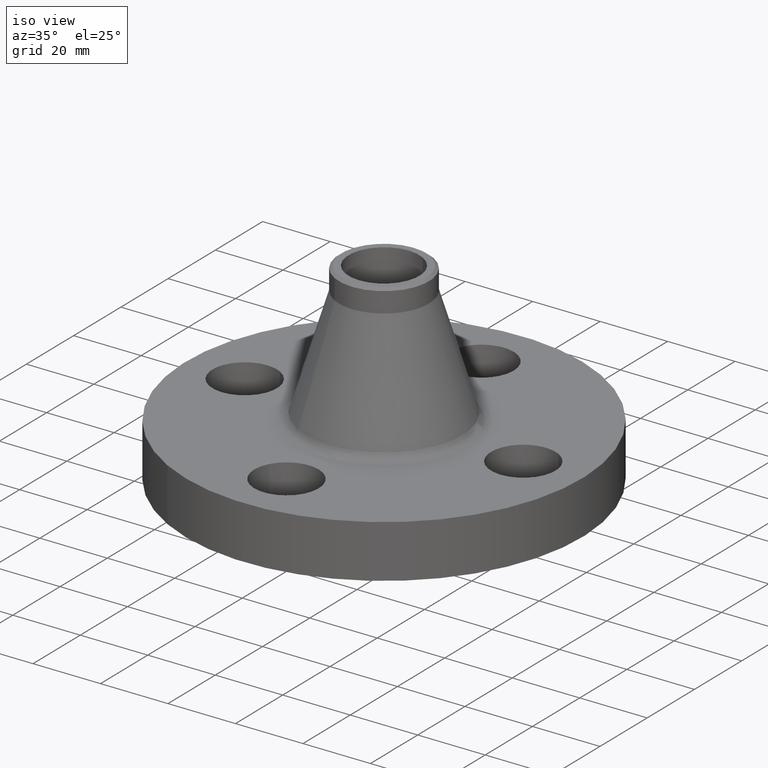
[diagram: clean part render]
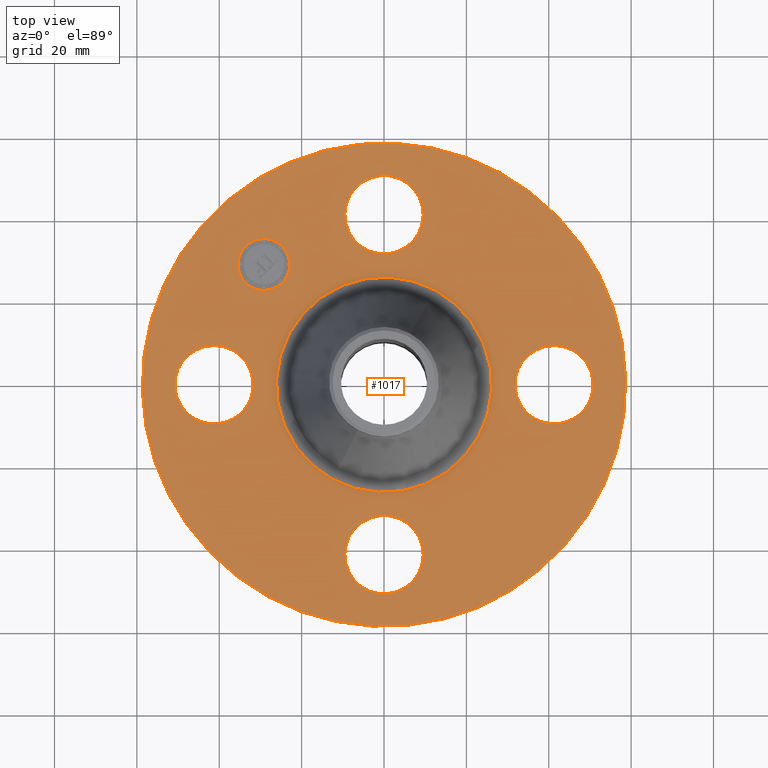
[diagram: tour spotlight — one face highlighted and labeled with its STEP entity id]
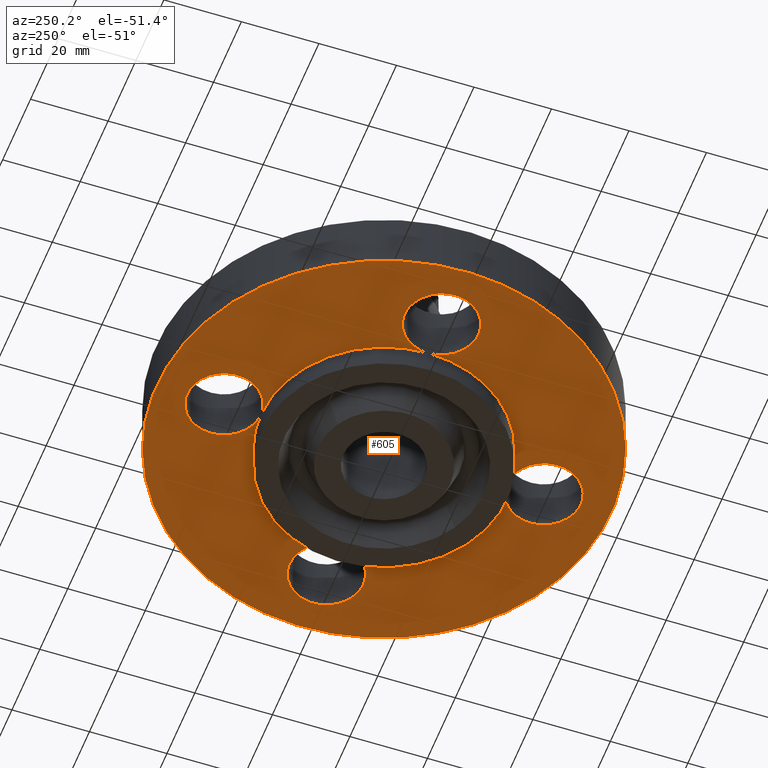
[diagram: tour spotlight — one face highlighted and labeled with its STEP entity id]
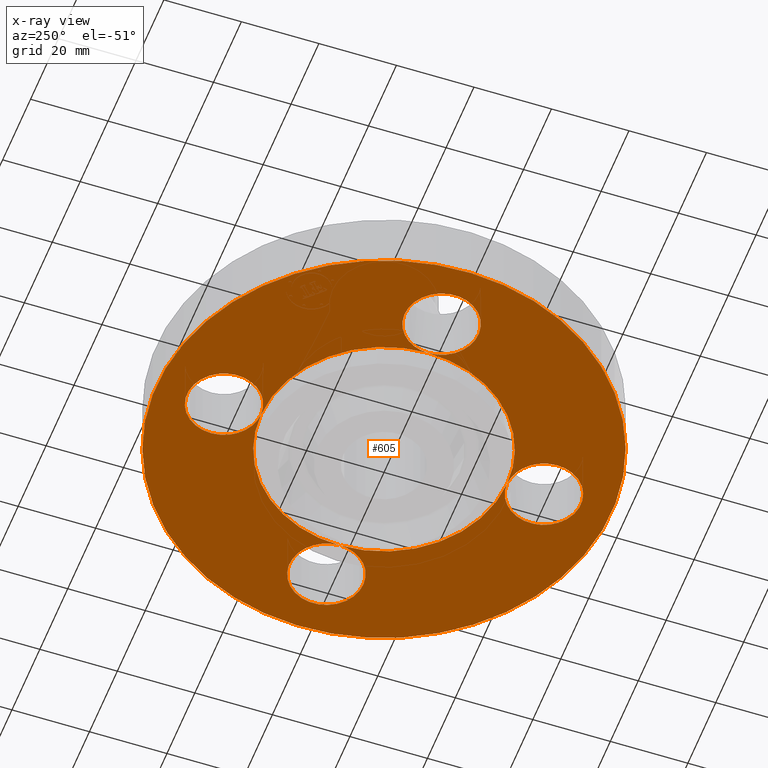
[diagram: x-ray of the same camera — body ghosted, this tour face saturated]
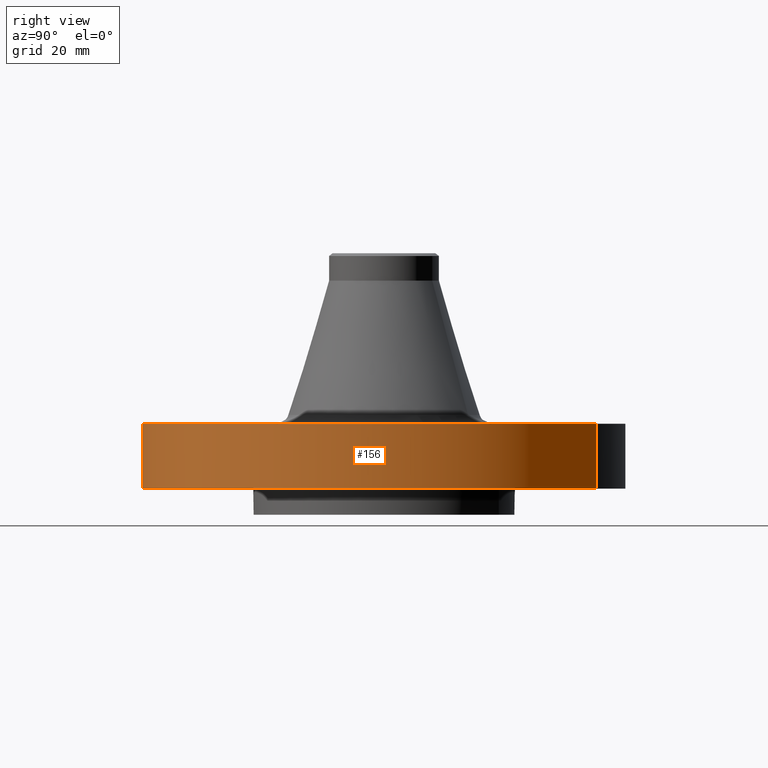
[diagram: tour spotlight — one face highlighted and labeled with its STEP entity id]
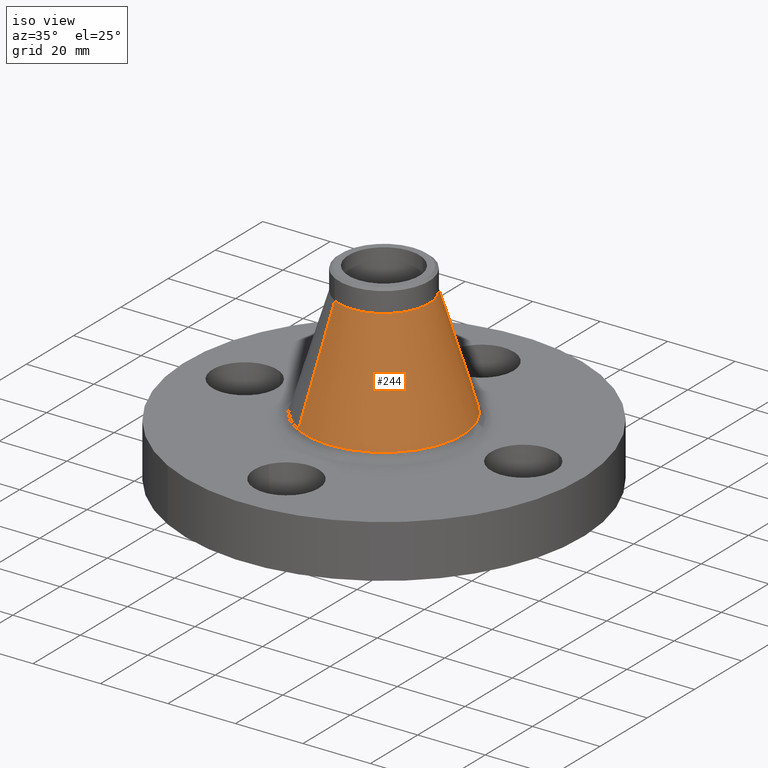
[diagram: tour spotlight — one face highlighted and labeled with its STEP entity id]
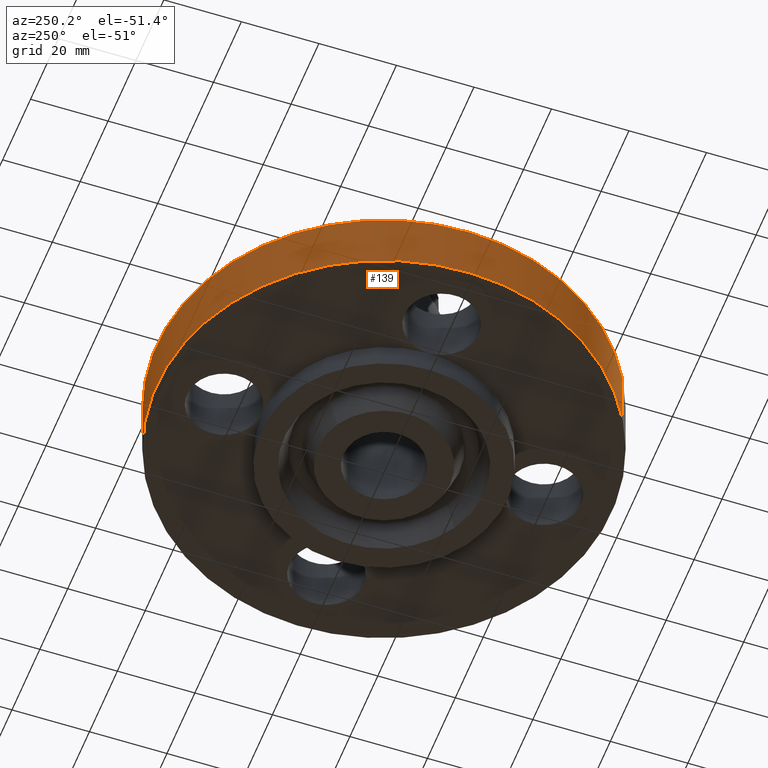
[diagram: tour spotlight — one face highlighted and labeled with its STEP entity id]
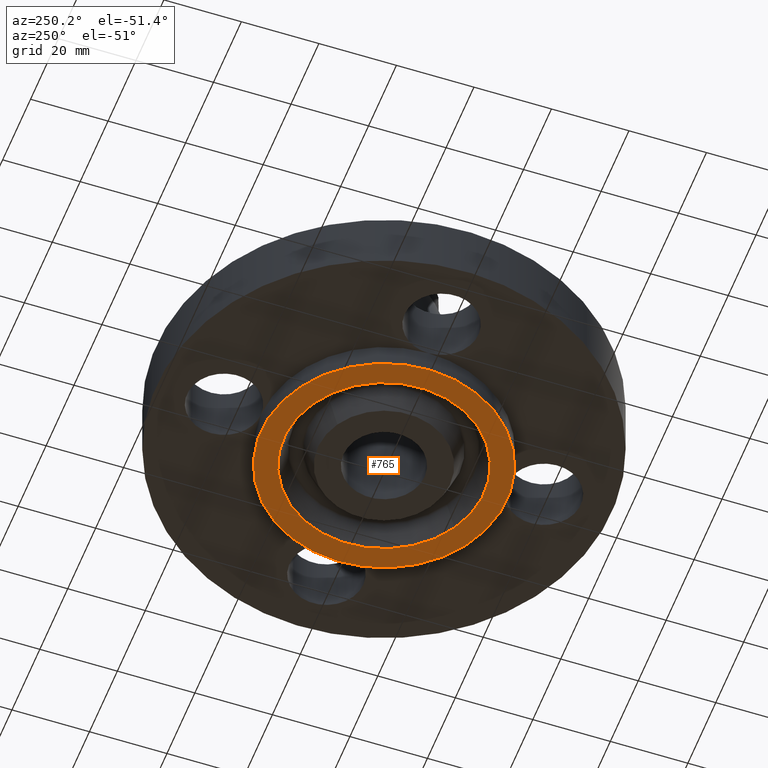
[diagram: tour spotlight — one face highlighted and labeled with its STEP entity id]
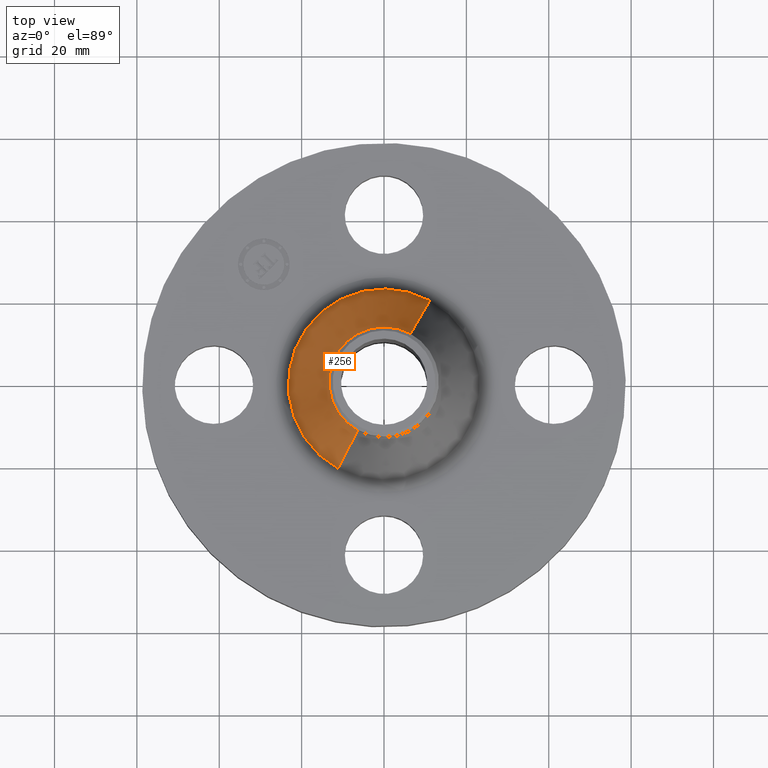
[diagram: tour spotlight — one face highlighted and labeled with its STEP entity id]
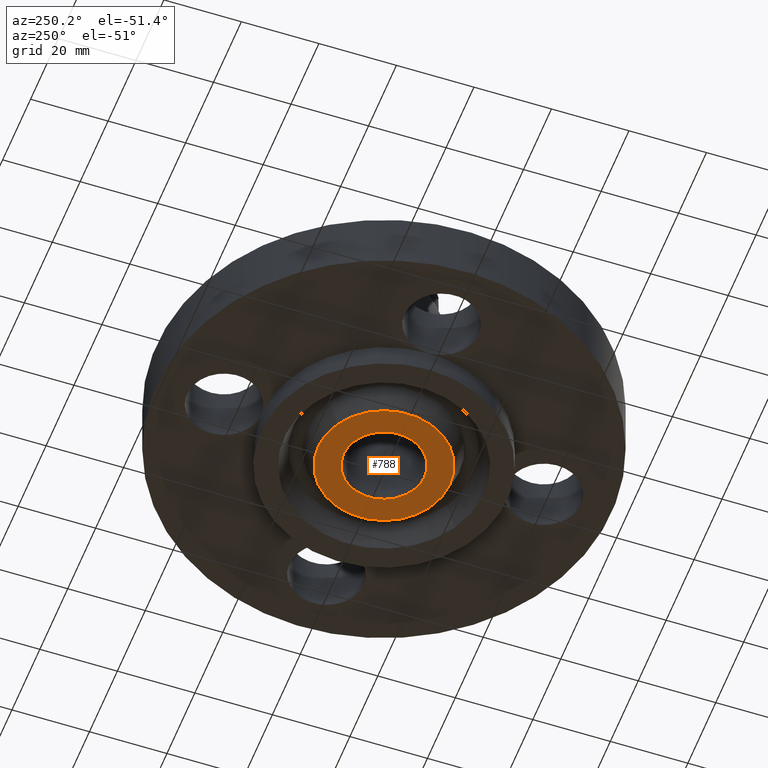
[diagram: tour spotlight — one face highlighted and labeled with its STEP entity id]
A machine part: a face-by-face anatomy tour. The part has 421 B-rep faces; the first image is the clean iso view, then the 8 largest visible faces are spotlighted one at a time (largest first), each with its STEP entity span.

Face 1 — top view, entity #1017. In plain terms, the highlighted planar face has unit normal (0, 0, -1).
Definition (entity closure, byte-faithful):
#65=AXIS2_PLACEMENT_3D('Circle Axis2P3D',#63,#64,$) ;
#89=AXIS2_PLACEMENT_3D('Circle Axis2P3D',#87,#88,$) ;
#123=AXIS2_PLACEMENT_3D('Circle Axis2P3D',#121,#122,$) ;
#147=AXIS2_PLACEMENT_3D('Circle Axis2P3D',#145,#146,$) ;
#164=AXIS2_PLACEMENT_3D('Circle Axis2P3D',#162,#163,$) ;
#199=AXIS2_PLACEMENT_3D('Circle Axis2P3D',#197,#198,$) ;
#627=AXIS2_PLACEMENT_3D('Circle Axis2P3D',#625,#626,$) ;
#639=AXIS2_PLACEMENT_3D('Circle Axis2P3D',#637,#638,$) ;
#671=AXIS2_PLACEMENT_3D('Circle Axis2P3D',#669,#670,$) ;
#683=AXIS2_PLACEMENT_3D('Circle Axis2P3D',#681,#682,$) ;
#715=AXIS2_PLACEMENT_3D('Circle Axis2P3D',#713,#714,$) ;
#727=AXIS2_PLACEMENT_3D('Circle Axis2P3D',#725,#726,$) ;
#973=AXIS2_PLACEMENT_3D('Plane Axis2P3D',#970,#971,#972) ;
#1001=AXIS2_PLACEMENT_3D('Circle Axis2P3D',#999,#1000,$) ;
#1010=AXIS2_PLACEMENT_3D('Circle Axis2P3D',#1008,#1009,$) ;
#46=CARTESIAN_POINT('Vertex',(-0.32909346071,1.80478457698,0.620000000002)) ;
#60=CARTESIAN_POINT('Vertex',(0.32909346071,1.44521542303,0.620000000002)) ;
#63=CARTESIAN_POINT('Axis2P3D Location',(0.,1.62500000001,0.620000000002)) ;
#87=CARTESIAN_POINT('Axis2P3D Location',(0.,1.62500000001,0.620000000002)) ;
#118=CARTESIAN_POINT('Vertex',(-1.10747299418,-2.02721571797,0.620000000002)) ;
#121=CARTESIAN_POINT('Axis2P3D Location',(0.,0.,0.620000000002)) ;
#125=CARTESIAN_POINT('Vertex',(1.10747299418,2.02721571797,0.620000000002)) ;
#145=CARTESIAN_POINT('Axis2P3D Location',(0.,0.,0.620000000002)) ;
#162=CARTESIAN_POINT('Axis2P3D Location',(0.,0.,0.620000000002)) ;
#166=CARTESIAN_POINT('Vertex',(0.49332269324,0.903021132819,0.620000000002)) ;
#168=CARTESIAN_POINT('Vertex',(-0.49332269324,-0.903021132819,0.620000000002)) ;
#197=CARTESIAN_POINT('Axis2P3D Location',(0.,0.,0.620000000002)) ;
#615=CARTESIAN_POINT('Vertex',(1.80478457698,0.32909346071,0.620000000002)) ;
#622=CARTESIAN_POINT('Vertex',(1.44521542303,-0.32909346071,0.620000000002)) ;
#625=CARTESIAN_POINT('Axis2P3D Location',(1.62500000001,-1.8023868212E-016,0.620000000002)) ;
#637=CARTESIAN_POINT('Axis2P3D Location',(1.62500000001,-1.8023868212E-016,0.620000000002)) ;
#659=CARTESIAN_POINT('Vertex',(-1.80478457698,-0.32909346071,0.620000000002)) ;
#666=CARTESIAN_POINT('Vertex',(-1.44521542303,0.32909346071,0.620000000002)) ;
#669=CARTESIAN_POINT('Axis2P3D Location',(-1.62500000001,-2.98507657293E-016,0.620000000002)) ;
#681=CARTESIAN_POINT('Axis2P3D Location',(-1.62500000001,-2.98507657293E-016,0.620000000002)) ;
#703=CARTESIAN_POINT('Vertex',(0.32909346071,-1.80478457698,0.620000000002)) ;
#710=CARTESIAN_POINT('Vertex',(-0.32909346071,-1.44521542303,0.620000000002)) ;
#713=CARTESIAN_POINT('Axis2P3D Location',(1.99005104862E-016,-1.62500000001,0.620000000002)) ;
#725=CARTESIAN_POINT('Axis2P3D Location',(1.99005104862E-016,-1.62500000001,0.620000000002)) ;
#970=CARTESIAN_POINT('Axis2P3D Location',(0.,2.31000000001,0.620000000002)) ;
#999=CARTESIAN_POINT('Axis2P3D Location',(-1.14904851943,1.14904851943,0.620000000002)) ;
#1003=CARTESIAN_POINT('Vertex',(-1.32405744778,0.974039591088,0.620000000002)) ;
#1005=CARTESIAN_POINT('Vertex',(-0.974039591088,1.32405744778,0.620000000002)) ;
#1008=CARTESIAN_POINT('Axis2P3D Location',(-1.14904851943,1.14904851943,0.620000000002)) ;
#64=DIRECTION('Axis2P3D Direction',(0.,-0.,-0.0393700787402)) ;
#88=DIRECTION('Axis2P3D Direction',(0.,-0.,-0.0393700787402)) ;
#122=DIRECTION('Axis2P3D Direction',(0.,0.,-0.0393700787402)) ;
#146=DIRECTION('Axis2P3D Direction',(0.,0.,-0.0393700787402)) ;
#163=DIRECTION('Axis2P3D Direction',(0.,0.,-0.0393700787402)) ;
#198=DIRECTION('Axis2P3D Direction',(0.,0.,-0.0393700787402)) ;
#626=DIRECTION('Axis2P3D Direction',(0.,-0.,-0.0393700787402)) ;
#638=DIRECTION('Axis2P3D Direction',(0.,-0.,-0.0393700787402)) ;
#670=DIRECTION('Axis2P3D Direction',(0.,0.,-0.0393700787402)) ;
#682=DIRECTION('Axis2P3D Direction',(0.,0.,-0.0393700787402)) ;
#714=DIRECTION('Axis2P3D Direction',(-0.,0.,-0.0393700787402)) ;
#726=DIRECTION('Axis2P3D Direction',(-0.,0.,-0.0393700787402)) ;
#971=DIRECTION('Axis2P3D Direction',(0.,0.,-0.0393700787402)) ;
#972=DIRECTION('Axis2P3D XDirection',(0.0393700787402,0.,0.)) ;
#1000=DIRECTION('Axis2P3D Direction',(0.,0.,-0.0393700787402)) ;
#1009=DIRECTION('Axis2P3D Direction',(0.,0.,-0.0393700787402)) ;
#976=ORIENTED_EDGE('',*,*,#149,.F.) ;
#977=ORIENTED_EDGE('',*,*,#127,.F.) ;
#980=ORIENTED_EDGE('',*,*,#67,.T.) ;
#981=ORIENTED_EDGE('',*,*,#91,.T.) ;
#984=ORIENTED_EDGE('',*,*,#201,.T.) ;
#985=ORIENTED_EDGE('',*,*,#170,.T.) ;
#988=ORIENTED_EDGE('',*,*,#641,.T.) ;
#989=ORIENTED_EDGE('',*,*,#629,.T.) ;
#992=ORIENTED_EDGE('',*,*,#729,.T.) ;
#993=ORIENTED_EDGE('',*,*,#717,.T.) ;
#996=ORIENTED_EDGE('',*,*,#685,.T.) ;
#997=ORIENTED_EDGE('',*,*,#673,.T.) ;
#1014=ORIENTED_EDGE('',*,*,#1007,.T.) ;
#1015=ORIENTED_EDGE('',*,*,#1012,.T.) ;
#982=FACE_BOUND('',#979,.T.) ;
#986=FACE_BOUND('',#983,.T.) ;
#990=FACE_BOUND('',#987,.T.) ;
#994=FACE_BOUND('',#991,.T.) ;
#998=FACE_BOUND('',#995,.T.) ;
#1016=FACE_BOUND('',#1013,.T.) ;
#1017=ADVANCED_FACE('PartBody',(#978,#982,#986,#990,#994,#998,#1016),#974,.F.) ;
#66=CIRCLE('generated circle',#65,0.375000000001) ;
#90=CIRCLE('generated circle',#89,0.375000000001) ;
#124=CIRCLE('generated circle',#123,2.31000000001) ;
#148=CIRCLE('generated circle',#147,2.31000000001) ;
#165=CIRCLE('generated circle',#164,1.02898709709) ;
#200=CIRCLE('generated circle',#199,1.02898709709) ;
#628=CIRCLE('generated circle',#627,0.375000000001) ;
#640=CIRCLE('generated circle',#639,0.375000000001) ;
#672=CIRCLE('generated circle',#671,0.375000000001) ;
#684=CIRCLE('generated circle',#683,0.375000000001) ;
#716=CIRCLE('generated circle',#715,0.375000000001) ;
#728=CIRCLE('generated circle',#727,0.375000000001) ;
#1002=CIRCLE('generated circle',#1001,0.247500000001) ;
#1011=CIRCLE('generated circle',#1010,0.247500000001) ;
#67=EDGE_CURVE('',#47,#61,#66,.T.) ;
#91=EDGE_CURVE('',#61,#47,#90,.T.) ;
#127=EDGE_CURVE('',#119,#126,#124,.T.) ;
#149=EDGE_CURVE('',#126,#119,#148,.T.) ;
#170=EDGE_CURVE('',#167,#169,#165,.T.) ;
#201=EDGE_CURVE('',#169,#167,#200,.T.) ;
#629=EDGE_CURVE('',#616,#623,#628,.T.) ;
#641=EDGE_CURVE('',#623,#616,#640,.T.) ;
#673=EDGE_CURVE('',#660,#667,#672,.T.) ;
#685=EDGE_CURVE('',#667,#660,#684,.T.) ;
#717=EDGE_CURVE('',#704,#711,#716,.T.) ;
#729=EDGE_CURVE('',#711,#704,#728,.T.) ;
#1007=EDGE_CURVE('',#1004,#1006,#1002,.T.) ;
#1012=EDGE_CURVE('',#1006,#1004,#1011,.T.) ;
#975=EDGE_LOOP('',(#976,#977)) ;
#979=EDGE_LOOP('',(#980,#981)) ;
#983=EDGE_LOOP('',(#984,#985)) ;
#987=EDGE_LOOP('',(#988,#989)) ;
#991=EDGE_LOOP('',(#992,#993)) ;
#995=EDGE_LOOP('',(#996,#997)) ;
#1013=EDGE_LOOP('',(#1014,#1015)) ;
#978=FACE_OUTER_BOUND('',#975,.T.) ;
#974=PLANE('',#973) ;
#47=VERTEX_POINT('',#46) ;
#61=VERTEX_POINT('',#60) ;
#119=VERTEX_POINT('',#118) ;
#126=VERTEX_POINT('',#125) ;
#167=VERTEX_POINT('',#166) ;
#169=VERTEX_POINT('',#168) ;
#616=VERTEX_POINT('',#615) ;
#623=VERTEX_POINT('',#622) ;
#660=VERTEX_POINT('',#659) ;
#667=VERTEX_POINT('',#666) ;
#704=VERTEX_POINT('',#703) ;
#711=VERTEX_POINT('',#710) ;
#1004=VERTEX_POINT('',#1003) ;
#1006=VERTEX_POINT('',#1005) ;

Face 2 — auxiliary view, entity #605. An x-ray twin of the same camera follows (body ghosted, this face saturated) — the face is partly hidden behind the body. In plain terms, the highlighted planar face has unit normal (0, 0, -1).
Definition (entity closure, byte-faithful):
#51=AXIS2_PLACEMENT_3D('Circle Axis2P3D',#49,#50,$) ;
#77=AXIS2_PLACEMENT_3D('Circle Axis2P3D',#75,#76,$) ;
#84=AXIS2_PLACEMENT_3D('Circle Axis2P3D',#82,#83,$) ;
#107=AXIS2_PLACEMENT_3D('Circle Axis2P3D',#105,#106,$) ;
#142=AXIS2_PLACEMENT_3D('Circle Axis2P3D',#140,#141,$) ;
#455=AXIS2_PLACEMENT_3D('Circle Axis2P3D',#453,#454,$) ;
#462=AXIS2_PLACEMENT_3D('Circle Axis2P3D',#460,#461,$) ;
#467=AXIS2_PLACEMENT_3D('Circle Axis2P3D',#465,#466,$) ;
#493=AXIS2_PLACEMENT_3D('Circle Axis2P3D',#491,#492,$) ;
#500=AXIS2_PLACEMENT_3D('Circle Axis2P3D',#498,#499,$) ;
#507=AXIS2_PLACEMENT_3D('Circle Axis2P3D',#505,#506,$) ;
#522=AXIS2_PLACEMENT_3D('Plane Axis2P3D',#519,#520,#521) ;
#530=AXIS2_PLACEMENT_3D('Circle Axis2P3D',#528,#529,$) ;
#537=AXIS2_PLACEMENT_3D('Circle Axis2P3D',#535,#536,$) ;
#544=AXIS2_PLACEMENT_3D('Circle Axis2P3D',#542,#543,$) ;
#549=AXIS2_PLACEMENT_3D('Circle Axis2P3D',#547,#548,$) ;
#556=AXIS2_PLACEMENT_3D('Circle Axis2P3D',#554,#555,$) ;
#563=AXIS2_PLACEMENT_3D('Circle Axis2P3D',#561,#562,$) ;
#568=AXIS2_PLACEMENT_3D('Circle Axis2P3D',#566,#567,$) ;
#575=AXIS2_PLACEMENT_3D('Circle Axis2P3D',#573,#574,$) ;
#582=AXIS2_PLACEMENT_3D('Circle Axis2P3D',#580,#581,$) ;
#44=CARTESIAN_POINT('Vertex',(-0.32909346071,1.80478457698,0.)) ;
#49=CARTESIAN_POINT('Axis2P3D Location',(0.,1.62500000001,0.)) ;
#53=CARTESIAN_POINT('Vertex',(0.32909346071,1.44521542303,0.)) ;
#75=CARTESIAN_POINT('Axis2P3D Location',(0.,1.62500000001,0.)) ;
#79=CARTESIAN_POINT('Vertex',(3.90510912389E-015,1.25000000001,1.39870617276E-016)) ;
#82=CARTESIAN_POINT('Axis2P3D Location',(0.,1.62500000001,0.)) ;
#105=CARTESIAN_POINT('Axis2P3D Location',(0.,0.,1.39870617276E-016)) ;
#109=CARTESIAN_POINT('Vertex',(-1.10747299418,-2.02721571797,2.79741234551E-016)) ;
#111=CARTESIAN_POINT('Vertex',(1.10747299418,2.02721571797,2.79741234551E-016)) ;
#140=CARTESIAN_POINT('Axis2P3D Location',(0.,0.,1.39870617276E-016)) ;
#450=CARTESIAN_POINT('Vertex',(-0.599281923258,-1.09697820237,1.39870617276E-016)) ;
#453=CARTESIAN_POINT('Axis2P3D Location',(0.,0.,1.39870617276E-016)) ;
#457=CARTESIAN_POINT('Vertex',(-1.25000000001,-1.39870617276E-016,0.)) ;
#460=CARTESIAN_POINT('Axis2P3D Location',(0.,0.,1.39870617276E-016)) ;
#465=CARTESIAN_POINT('Axis2P3D Location',(0.,0.,1.39870617276E-016)) ;
#469=CARTESIAN_POINT('Vertex',(0.599281923258,1.09697820237,1.39870617276E-016)) ;
#491=CARTESIAN_POINT('Axis2P3D Location',(0.,0.,1.39870617276E-016)) ;
#495=CARTESIAN_POINT('Vertex',(1.25000000001,-1.39870617276E-016,0.)) ;
#498=CARTESIAN_POINT('Axis2P3D Location',(0.,0.,1.39870617276E-016)) ;
#502=CARTESIAN_POINT('Vertex',(2.02112938519E-016,-1.25000000001,0.)) ;
#505=CARTESIAN_POINT('Axis2P3D Location',(0.,0.,1.39870617276E-016)) ;
#519=CARTESIAN_POINT('Axis2P3D Location',(0.,1.25000000001,0.)) ;
#528=CARTESIAN_POINT('Axis2P3D Location',(2.70999320971E-016,-1.62500000001,0.)) ;
#532=CARTESIAN_POINT('Vertex',(-0.32909346071,-1.44521542303,0.)) ;
#535=CARTESIAN_POINT('Axis2P3D Location',(1.39870617276E-016,-1.62500000001,0.)) ;
#539=CARTESIAN_POINT('Vertex',(0.32909346071,-1.80478457698,0.)) ;
#542=CARTESIAN_POINT('Axis2P3D Location',(2.70999320971E-016,-1.62500000001,0.)) ;
#547=CARTESIAN_POINT('Axis2P3D Location',(1.62500000001,-1.39870617276E-016,0.)) ;
#551=CARTESIAN_POINT('Vertex',(1.44521542303,-0.32909346071,0.)) ;
#554=CARTESIAN_POINT('Axis2P3D Location',(1.62500000001,-1.39870617276E-016,0.)) ;
#558=CARTESIAN_POINT('Vertex',(1.80478457698,0.32909346071,0.)) ;
#561=CARTESIAN_POINT('Axis2P3D Location',(1.62500000001,-1.39870617276E-016,0.)) ;
#566=CARTESIAN_POINT('Axis2P3D Location',(-1.62500000001,-2.79741234551E-016,0.)) ;
#570=CARTESIAN_POINT('Vertex',(-1.44521542303,0.32909346071,0.)) ;
#573=CARTESIAN_POINT('Axis2P3D Location',(-1.62500000001,-2.79741234551E-016,0.)) ;
#577=CARTESIAN_POINT('Vertex',(-1.80478457698,-0.32909346071,0.)) ;
#580=CARTESIAN_POINT('Axis2P3D Location',(-1.62500000001,-2.79741234551E-016,0.)) ;
#50=DIRECTION('Axis2P3D Direction',(0.,-0.,-0.0393700787402)) ;
#76=DIRECTION('Axis2P3D Direction',(0.,-0.,-0.0393700787402)) ;
#83=DIRECTION('Axis2P3D Direction',(0.,-0.,-0.0393700787402)) ;
#106=DIRECTION('Axis2P3D Direction',(0.,0.,-0.0393700787402)) ;
#141=DIRECTION('Axis2P3D Direction',(0.,0.,-0.0393700787402)) ;
#454=DIRECTION('Axis2P3D Direction',(0.,0.,-0.0393700787402)) ;
#461=DIRECTION('Axis2P3D Direction',(0.,0.,-0.0393700787402)) ;
#466=DIRECTION('Axis2P3D Direction',(0.,0.,-0.0393700787402)) ;
#492=DIRECTION('Axis2P3D Direction',(0.,0.,-0.0393700787402)) ;
#499=DIRECTION('Axis2P3D Direction',(0.,0.,-0.0393700787402)) ;
#506=DIRECTION('Axis2P3D Direction',(0.,0.,-0.0393700787402)) ;
#520=DIRECTION('Axis2P3D Direction',(0.,0.,-0.0393700787402)) ;
#521=DIRECTION('Axis2P3D XDirection',(0.0393700787402,0.,0.)) ;
#529=DIRECTION('Axis2P3D Direction',(0.,0.,-0.0393700787402)) ;
#536=DIRECTION('Axis2P3D Direction',(0.,0.,-0.0393700787402)) ;
#543=DIRECTION('Axis2P3D Direction',(0.,0.,-0.0393700787402)) ;
#548=DIRECTION('Axis2P3D Direction',(0.,0.,-0.0393700787402)) ;
#555=DIRECTION('Axis2P3D Direction',(0.,0.,-0.0393700787402)) ;
#562=DIRECTION('Axis2P3D Direction',(0.,0.,-0.0393700787402)) ;
#567=DIRECTION('Axis2P3D Direction',(0.,0.,-0.0393700787402)) ;
#574=DIRECTION('Axis2P3D Direction',(0.,0.,-0.0393700787402)) ;
#581=DIRECTION('Axis2P3D Direction',(0.,0.,-0.0393700787402)) ;
#525=ORIENTED_EDGE('',*,*,#113,.T.) ;
#526=ORIENTED_EDGE('',*,*,#144,.T.) ;
#586=ORIENTED_EDGE('',*,*,#534,.F.) ;
#587=ORIENTED_EDGE('',*,*,#541,.F.) ;
#588=ORIENTED_EDGE('',*,*,#546,.F.) ;
#589=ORIENTED_EDGE('',*,*,#504,.F.) ;
#590=ORIENTED_EDGE('',*,*,#553,.F.) ;
#591=ORIENTED_EDGE('',*,*,#560,.F.) ;
#592=ORIENTED_EDGE('',*,*,#565,.F.) ;
#593=ORIENTED_EDGE('',*,*,#497,.F.) ;
#594=ORIENTED_EDGE('',*,*,#471,.F.) ;
#595=ORIENTED_EDGE('',*,*,#81,.F.) ;
#596=ORIENTED_EDGE('',*,*,#55,.F.) ;
#597=ORIENTED_EDGE('',*,*,#86,.F.) ;
#598=ORIENTED_EDGE('',*,*,#464,.F.) ;
#599=ORIENTED_EDGE('',*,*,#572,.F.) ;
#600=ORIENTED_EDGE('',*,*,#579,.F.) ;
#601=ORIENTED_EDGE('',*,*,#584,.F.) ;
#602=ORIENTED_EDGE('',*,*,#459,.F.) ;
#603=ORIENTED_EDGE('',*,*,#509,.F.) ;
#604=FACE_BOUND('',#585,.T.) ;
#605=ADVANCED_FACE('PartBody',(#527,#604),#523,.T.) ;
#52=CIRCLE('generated circle',#51,0.375000000001) ;
#78=CIRCLE('generated circle',#77,0.375000000001) ;
#85=CIRCLE('generated circle',#84,0.375000000001) ;
#108=CIRCLE('generated circle',#107,2.31000000001) ;
#143=CIRCLE('generated circle',#142,2.31000000001) ;
#456=CIRCLE('generated circle',#455,1.25000000001) ;
#463=CIRCLE('generated circle',#462,1.25000000001) ;
#468=CIRCLE('generated circle',#467,1.25000000001) ;
#494=CIRCLE('generated circle',#493,1.25000000001) ;
#501=CIRCLE('generated circle',#500,1.25000000001) ;
#508=CIRCLE('generated circle',#507,1.25000000001) ;
#531=CIRCLE('generated circle',#530,0.375000000001) ;
#538=CIRCLE('generated circle',#537,0.375000000001) ;
#545=CIRCLE('generated circle',#544,0.375000000001) ;
#550=CIRCLE('generated circle',#549,0.375000000001) ;
#557=CIRCLE('generated circle',#556,0.375000000001) ;
#564=CIRCLE('generated circle',#563,0.375000000001) ;
#569=CIRCLE('generated circle',#568,0.375000000001) ;
#576=CIRCLE('generated circle',#575,0.375000000001) ;
#583=CIRCLE('generated circle',#582,0.375000000001) ;
#55=EDGE_CURVE('',#45,#54,#52,.T.) ;
#81=EDGE_CURVE('',#54,#80,#78,.T.) ;
#86=EDGE_CURVE('',#80,#45,#85,.T.) ;
#113=EDGE_CURVE('',#110,#112,#108,.T.) ;
#144=EDGE_CURVE('',#112,#110,#143,.T.) ;
#459=EDGE_CURVE('',#451,#458,#456,.T.) ;
#464=EDGE_CURVE('',#458,#80,#463,.T.) ;
#471=EDGE_CURVE('',#80,#470,#468,.T.) ;
#497=EDGE_CURVE('',#470,#496,#494,.T.) ;
#504=EDGE_CURVE('',#496,#503,#501,.T.) ;
#509=EDGE_CURVE('',#503,#451,#508,.T.) ;
#534=EDGE_CURVE('',#533,#503,#531,.T.) ;
#541=EDGE_CURVE('',#540,#533,#538,.T.) ;
#546=EDGE_CURVE('',#503,#540,#545,.T.) ;
#553=EDGE_CURVE('',#552,#496,#550,.T.) ;
#560=EDGE_CURVE('',#559,#552,#557,.T.) ;
#565=EDGE_CURVE('',#496,#559,#564,.T.) ;
#572=EDGE_CURVE('',#571,#458,#569,.T.) ;
#579=EDGE_CURVE('',#578,#571,#576,.T.) ;
#584=EDGE_CURVE('',#458,#578,#583,.T.) ;
#524=EDGE_LOOP('',(#525,#526)) ;
#585=EDGE_LOOP('',(#586,#587,#588,#589,#590,#591,#592,#593,#594,#595,#596,#597,#598,#599,#600,#601,#602,#603)) ;
#527=FACE_OUTER_BOUND('',#524,.T.) ;
#523=PLANE('',#522) ;
#45=VERTEX_POINT('',#44) ;
#54=VERTEX_POINT('',#53) ;
#80=VERTEX_POINT('',#79) ;
#110=VERTEX_POINT('',#109) ;
#112=VERTEX_POINT('',#111) ;
#451=VERTEX_POINT('',#450) ;
#458=VERTEX_POINT('',#457) ;
#470=VERTEX_POINT('',#469) ;
#496=VERTEX_POINT('',#495) ;
#503=VERTEX_POINT('',#502) ;
#533=VERTEX_POINT('',#532) ;
#540=VERTEX_POINT('',#539) ;
#552=VERTEX_POINT('',#551) ;
#559=VERTEX_POINT('',#558) ;
#571=VERTEX_POINT('',#570) ;
#578=VERTEX_POINT('',#577) ;

Face 3 — right view, entity #156. In plain terms, the highlighted cylindrical surface (partial cylindrical patch) has radius 58.674 mm, axis along (0, 0, -1).
Definition (entity closure, byte-faithful):
#103=AXIS2_PLACEMENT_3D('Cylinder Axis2P3D',#100,#101,#102) ;
#142=AXIS2_PLACEMENT_3D('Circle Axis2P3D',#140,#141,$) ;
#147=AXIS2_PLACEMENT_3D('Circle Axis2P3D',#145,#146,$) ;
#100=CARTESIAN_POINT('Axis2P3D Location',(0.,0.,1.)) ;
#109=CARTESIAN_POINT('Vertex',(-1.10747299418,-2.02721571797,2.79741234551E-016)) ;
#111=CARTESIAN_POINT('Vertex',(1.10747299418,2.02721571797,2.79741234551E-016)) ;
#114=CARTESIAN_POINT('Line Origine',(-1.10747299418,-2.02721571797,0.310000000001)) ;
#118=CARTESIAN_POINT('Vertex',(-1.10747299418,-2.02721571797,0.620000000002)) ;
#125=CARTESIAN_POINT('Vertex',(1.10747299418,2.02721571797,0.620000000002)) ;
#128=CARTESIAN_POINT('Line Origine',(1.10747299418,2.02721571797,0.310000000001)) ;
#140=CARTESIAN_POINT('Axis2P3D Location',(0.,0.,1.39870617276E-016)) ;
#145=CARTESIAN_POINT('Axis2P3D Location',(0.,0.,0.620000000002)) ;
#101=DIRECTION('Axis2P3D Direction',(0.,0.,-0.0393700787402)) ;
#102=DIRECTION('Axis2P3D XDirection',(0.0188750212049,0.0345504945626,0.)) ;
#115=DIRECTION('Vector Direction',(0.,0.,-0.0393700787402)) ;
#129=DIRECTION('Vector Direction',(0.,0.,-0.0393700787402)) ;
#141=DIRECTION('Axis2P3D Direction',(0.,0.,-0.0393700787402)) ;
#146=DIRECTION('Axis2P3D Direction',(0.,0.,-0.0393700787402)) ;
#116=VECTOR('Line Direction',#115,0.0393700787402) ;
#130=VECTOR('Line Direction',#129,0.0393700787402) ;
#151=ORIENTED_EDGE('',*,*,#144,.F.) ;
#152=ORIENTED_EDGE('',*,*,#132,.T.) ;
#153=ORIENTED_EDGE('',*,*,#149,.T.) ;
#154=ORIENTED_EDGE('',*,*,#120,.F.) ;
#156=ADVANCED_FACE('PartBody',(#155),#104,.T.) ;
#143=CIRCLE('generated circle',#142,2.31000000001) ;
#148=CIRCLE('generated circle',#147,2.31000000001) ;
#104=CYLINDRICAL_SURFACE('generated cylinder',#103,2.31000000001) ;
#120=EDGE_CURVE('',#110,#119,#117,.F.) ;
#132=EDGE_CURVE('',#112,#126,#131,.F.) ;
#144=EDGE_CURVE('',#112,#110,#143,.T.) ;
#149=EDGE_CURVE('',#126,#119,#148,.T.) ;
#150=EDGE_LOOP('',(#151,#152,#153,#154)) ;
#155=FACE_OUTER_BOUND('',#150,.T.) ;
#117=LINE('Line',#114,#116) ;
#131=LINE('Line',#128,#130) ;
#110=VERTEX_POINT('',#109) ;
#112=VERTEX_POINT('',#111) ;
#119=VERTEX_POINT('',#118) ;
#126=VERTEX_POINT('',#125) ;

Face 4 — iso view, entity #244. In plain terms, the highlighted conical surface has half-angle 16.882 deg.
Definition (entity closure, byte-faithful):
#180=AXIS2_PLACEMENT_3D('Circle Axis2P3D',#178,#179,$) ;
#217=AXIS2_PLACEMENT_3D('Cone Axis2P3D',#214,#215,#216) ;
#228=AXIS2_PLACEMENT_3D('Circle Axis2P3D',#226,#227,$) ;
#175=CARTESIAN_POINT('Vertex',(0.438270866998,0.802249440825,0.70515229534)) ;
#178=CARTESIAN_POINT('Axis2P3D Location',(0.,0.,0.70515229534)) ;
#182=CARTESIAN_POINT('Vertex',(-0.438270866998,-0.802249440825,0.70515229534)) ;
#214=CARTESIAN_POINT('Axis2P3D Location',(0.,0.,1.9874910258)) ;
#219=CARTESIAN_POINT('Line Origine',(0.344984637383,0.63149014291,1.34632166057)) ;
#223=CARTESIAN_POINT('Vertex',(0.251698407768,0.460730844994,1.9874910258)) ;
#226=CARTESIAN_POINT('Axis2P3D Location',(0.,0.,1.9874910258)) ;
#230=CARTESIAN_POINT('Vertex',(-0.251698407768,-0.460730844994,1.9874910258)) ;
#233=CARTESIAN_POINT('Line Origine',(-0.344984637383,-0.63149014291,1.34632166057)) ;
#179=DIRECTION('Axis2P3D Direction',(0.,0.,-0.0393700787402)) ;
#215=DIRECTION('Axis2P3D Direction',(0.,0.,-0.0393700787402)) ;
#216=DIRECTION('Axis2P3D XDirection',(-0.0188750212049,-0.0345504945626,0.)) ;
#220=DIRECTION('Vector Direction',(0.0054812597037,0.0100333785871,-0.0376734681997)) ;
#227=DIRECTION('Axis2P3D Direction',(0.,0.,-0.0393700787402)) ;
#234=DIRECTION('Vector Direction',(-0.0054812597037,-0.0100333785871,-0.0376734681997)) ;
#221=VECTOR('Line Direction',#220,0.0393700787402) ;
#235=VECTOR('Line Direction',#234,0.0393700787402) ;
#239=ORIENTED_EDGE('',*,*,#184,.F.) ;
#240=ORIENTED_EDGE('',*,*,#225,.T.) ;
#241=ORIENTED_EDGE('',*,*,#232,.T.) ;
#242=ORIENTED_EDGE('',*,*,#237,.F.) ;
#244=ADVANCED_FACE('PartBody',(#243),#218,.T.) ;
#181=CIRCLE('generated circle',#180,0.914158366019) ;
#229=CIRCLE('generated circle',#228,0.525000000002) ;
#218=CONICAL_SURFACE('Cone',#217,0.525000000002,0.294642253442) ;
#184=EDGE_CURVE('',#176,#183,#181,.T.) ;
#225=EDGE_CURVE('',#176,#224,#222,.F.) ;
#232=EDGE_CURVE('',#224,#231,#229,.T.) ;
#237=EDGE_CURVE('',#183,#231,#236,.F.) ;
#238=EDGE_LOOP('',(#239,#240,#241,#242)) ;
#243=FACE_OUTER_BOUND('',#238,.T.) ;
#222=LINE('Line',#219,#221) ;
#236=LINE('Line',#233,#235) ;
#176=VERTEX_POINT('',#175) ;
#183=VERTEX_POINT('',#182) ;
#224=VERTEX_POINT('',#223) ;
#231=VERTEX_POINT('',#230) ;

Face 5 — auxiliary view, entity #139. In plain terms, the highlighted cylindrical surface (partial cylindrical patch) has radius 58.674 mm, axis along (0, 0, -1).
Definition (entity closure, byte-faithful):
#103=AXIS2_PLACEMENT_3D('Cylinder Axis2P3D',#100,#101,#102) ;
#107=AXIS2_PLACEMENT_3D('Circle Axis2P3D',#105,#106,$) ;
#123=AXIS2_PLACEMENT_3D('Circle Axis2P3D',#121,#122,$) ;
#100=CARTESIAN_POINT('Axis2P3D Location',(0.,0.,1.)) ;
#105=CARTESIAN_POINT('Axis2P3D Location',(0.,0.,1.39870617276E-016)) ;
#109=CARTESIAN_POINT('Vertex',(-1.10747299418,-2.02721571797,2.79741234551E-016)) ;
#111=CARTESIAN_POINT('Vertex',(1.10747299418,2.02721571797,2.79741234551E-016)) ;
#114=CARTESIAN_POINT('Line Origine',(-1.10747299418,-2.02721571797,0.310000000001)) ;
#118=CARTESIAN_POINT('Vertex',(-1.10747299418,-2.02721571797,0.620000000002)) ;
#121=CARTESIAN_POINT('Axis2P3D Location',(0.,0.,0.620000000002)) ;
#125=CARTESIAN_POINT('Vertex',(1.10747299418,2.02721571797,0.620000000002)) ;
#128=CARTESIAN_POINT('Line Origine',(1.10747299418,2.02721571797,0.310000000001)) ;
#101=DIRECTION('Axis2P3D Direction',(0.,0.,-0.0393700787402)) ;
#102=DIRECTION('Axis2P3D XDirection',(0.0188750212049,0.0345504945626,0.)) ;
#106=DIRECTION('Axis2P3D Direction',(0.,0.,-0.0393700787402)) ;
#115=DIRECTION('Vector Direction',(0.,0.,-0.0393700787402)) ;
#122=DIRECTION('Axis2P3D Direction',(0.,0.,-0.0393700787402)) ;
#129=DIRECTION('Vector Direction',(0.,0.,-0.0393700787402)) ;
#116=VECTOR('Line Direction',#115,0.0393700787402) ;
#130=VECTOR('Line Direction',#129,0.0393700787402) ;
#134=ORIENTED_EDGE('',*,*,#113,.F.) ;
#135=ORIENTED_EDGE('',*,*,#120,.T.) ;
#136=ORIENTED_EDGE('',*,*,#127,.T.) ;
#137=ORIENTED_EDGE('',*,*,#132,.F.) ;
#139=ADVANCED_FACE('PartBody',(#138),#104,.T.) ;
#108=CIRCLE('generated circle',#107,2.31000000001) ;
#124=CIRCLE('generated circle',#123,2.31000000001) ;
#104=CYLINDRICAL_SURFACE('generated cylinder',#103,2.31000000001) ;
#113=EDGE_CURVE('',#110,#112,#108,.T.) ;
#120=EDGE_CURVE('',#110,#119,#117,.F.) ;
#127=EDGE_CURVE('',#119,#126,#124,.T.) ;
#132=EDGE_CURVE('',#112,#126,#131,.F.) ;
#133=EDGE_LOOP('',(#134,#135,#136,#137)) ;
#138=FACE_OUTER_BOUND('',#133,.T.) ;
#117=LINE('Line',#114,#116) ;
#131=LINE('Line',#128,#130) ;
#110=VERTEX_POINT('',#109) ;
#112=VERTEX_POINT('',#111) ;
#119=VERTEX_POINT('',#118) ;
#126=VERTEX_POINT('',#125) ;

Face 6 — auxiliary view, entity #765. In plain terms, the highlighted planar face has unit normal (0, 0, -1).
Definition (entity closure, byte-faithful):
#439=AXIS2_PLACEMENT_3D('Circle Axis2P3D',#437,#438,$) ;
#488=AXIS2_PLACEMENT_3D('Circle Axis2P3D',#486,#487,$) ;
#741=AXIS2_PLACEMENT_3D('Plane Axis2P3D',#738,#739,#740) ;
#749=AXIS2_PLACEMENT_3D('Circle Axis2P3D',#747,#748,$) ;
#758=AXIS2_PLACEMENT_3D('Circle Axis2P3D',#756,#757,$) ;
#437=CARTESIAN_POINT('Axis2P3D Location',(0.,0.,-0.250000000001)) ;
#441=CARTESIAN_POINT('Vertex',(-0.599281923258,-1.09697820237,-0.250000000001)) ;
#443=CARTESIAN_POINT('Vertex',(0.599281923258,1.09697820237,-0.250000000001)) ;
#486=CARTESIAN_POINT('Axis2P3D Location',(0.,0.,-0.250000000001)) ;
#738=CARTESIAN_POINT('Axis2P3D Location',(0.,0.412000000002,-0.250000000001)) ;
#747=CARTESIAN_POINT('Axis2P3D Location',(-1.04902962957E-016,-2.09805925913E-016,-0.250000000001)) ;
#751=CARTESIAN_POINT('Vertex',(0.487096347224,-0.891623882884,-0.250000000001)) ;
#753=CARTESIAN_POINT('Vertex',(-0.487096347224,0.891623882884,-0.250000000001)) ;
#756=CARTESIAN_POINT('Axis2P3D Location',(-3.49676543189E-017,6.99353086378E-017,-0.250000000001)) ;
#438=DIRECTION('Axis2P3D Direction',(0.,0.,-0.0393700787402)) ;
#487=DIRECTION('Axis2P3D Direction',(0.,0.,-0.0393700787402)) ;
#739=DIRECTION('Axis2P3D Direction',(0.,0.,-0.0393700787402)) ;
#740=DIRECTION('Axis2P3D XDirection',(0.0393700787402,0.,0.)) ;
#748=DIRECTION('Axis2P3D Direction',(0.,0.,-0.0393700787402)) ;
#757=DIRECTION('Axis2P3D Direction',(0.,0.,-0.0393700787402)) ;
#744=ORIENTED_EDGE('',*,*,#445,.T.) ;
#745=ORIENTED_EDGE('',*,*,#490,.T.) ;
#762=ORIENTED_EDGE('',*,*,#755,.F.) ;
#763=ORIENTED_EDGE('',*,*,#760,.F.) ;
#764=FACE_BOUND('',#761,.T.) ;
#765=ADVANCED_FACE('PartBody',(#746,#764),#742,.T.) ;
#440=CIRCLE('generated circle',#439,1.25000000001) ;
#489=CIRCLE('generated circle',#488,1.25000000001) ;
#750=CIRCLE('generated circle',#749,1.016) ;
#759=CIRCLE('generated circle',#758,1.016) ;
#445=EDGE_CURVE('',#442,#444,#440,.T.) ;
#490=EDGE_CURVE('',#444,#442,#489,.T.) ;
#755=EDGE_CURVE('',#752,#754,#750,.T.) ;
#760=EDGE_CURVE('',#754,#752,#759,.T.) ;
#743=EDGE_LOOP('',(#744,#745)) ;
#761=EDGE_LOOP('',(#762,#763)) ;
#746=FACE_OUTER_BOUND('',#743,.T.) ;
#742=PLANE('',#741) ;
#442=VERTEX_POINT('',#441) ;
#444=VERTEX_POINT('',#443) ;
#752=VERTEX_POINT('',#751) ;
#754=VERTEX_POINT('',#753) ;

Face 7 — top view, entity #256. In plain terms, the highlighted conical surface has half-angle 16.882 deg.
Definition (entity closure, byte-faithful):
#204=AXIS2_PLACEMENT_3D('Circle Axis2P3D',#202,#203,$) ;
#217=AXIS2_PLACEMENT_3D('Cone Axis2P3D',#214,#215,#216) ;
#247=AXIS2_PLACEMENT_3D('Circle Axis2P3D',#245,#246,$) ;
#175=CARTESIAN_POINT('Vertex',(0.438270866998,0.802249440825,0.70515229534)) ;
#182=CARTESIAN_POINT('Vertex',(-0.438270866998,-0.802249440825,0.70515229534)) ;
#202=CARTESIAN_POINT('Axis2P3D Location',(0.,0.,0.70515229534)) ;
#214=CARTESIAN_POINT('Axis2P3D Location',(0.,0.,1.9874910258)) ;
#219=CARTESIAN_POINT('Line Origine',(0.344984637383,0.63149014291,1.34632166057)) ;
#223=CARTESIAN_POINT('Vertex',(0.251698407768,0.460730844994,1.9874910258)) ;
#230=CARTESIAN_POINT('Vertex',(-0.251698407768,-0.460730844994,1.9874910258)) ;
#233=CARTESIAN_POINT('Line Origine',(-0.344984637383,-0.63149014291,1.34632166057)) ;
#245=CARTESIAN_POINT('Axis2P3D Location',(0.,0.,1.9874910258)) ;
#203=DIRECTION('Axis2P3D Direction',(0.,0.,-0.0393700787402)) ;
#215=DIRECTION('Axis2P3D Direction',(0.,0.,-0.0393700787402)) ;
#216=DIRECTION('Axis2P3D XDirection',(-0.0188750212049,-0.0345504945626,0.)) ;
#220=DIRECTION('Vector Direction',(0.0054812597037,0.0100333785871,-0.0376734681997)) ;
#234=DIRECTION('Vector Direction',(-0.0054812597037,-0.0100333785871,-0.0376734681997)) ;
#246=DIRECTION('Axis2P3D Direction',(0.,0.,-0.0393700787402)) ;
#221=VECTOR('Line Direction',#220,0.0393700787402) ;
#235=VECTOR('Line Direction',#234,0.0393700787402) ;
#251=ORIENTED_EDGE('',*,*,#206,.F.) ;
#252=ORIENTED_EDGE('',*,*,#237,.T.) ;
#253=ORIENTED_EDGE('',*,*,#249,.T.) ;
#254=ORIENTED_EDGE('',*,*,#225,.F.) ;
#256=ADVANCED_FACE('PartBody',(#255),#218,.T.) ;
#205=CIRCLE('generated circle',#204,0.914158366019) ;
#248=CIRCLE('generated circle',#247,0.525000000002) ;
#218=CONICAL_SURFACE('Cone',#217,0.525000000002,0.294642253442) ;
#206=EDGE_CURVE('',#183,#176,#205,.T.) ;
#225=EDGE_CURVE('',#176,#224,#222,.F.) ;
#237=EDGE_CURVE('',#183,#231,#236,.F.) ;
#249=EDGE_CURVE('',#231,#224,#248,.T.) ;
#250=EDGE_LOOP('',(#251,#252,#253,#254)) ;
#255=FACE_OUTER_BOUND('',#250,.T.) ;
#222=LINE('Line',#219,#221) ;
#236=LINE('Line',#233,#235) ;
#176=VERTEX_POINT('',#175) ;
#183=VERTEX_POINT('',#182) ;
#224=VERTEX_POINT('',#223) ;
#231=VERTEX_POINT('',#230) ;

Face 8 — auxiliary view, entity #788. In plain terms, the highlighted planar face has unit normal (0, 0, -1).
Definition (entity closure, byte-faithful):
#371=AXIS2_PLACEMENT_3D('Circle Axis2P3D',#369,#370,$) ;
#395=AXIS2_PLACEMENT_3D('Circle Axis2P3D',#393,#394,$) ;
#741=AXIS2_PLACEMENT_3D('Plane Axis2P3D',#738,#739,#740) ;
#768=AXIS2_PLACEMENT_3D('Circle Axis2P3D',#766,#767,$) ;
#777=AXIS2_PLACEMENT_3D('Circle Axis2P3D',#775,#776,$) ;
#366=CARTESIAN_POINT('Vertex',(0.197523321906,0.3615640155,-0.250000000001)) ;
#369=CARTESIAN_POINT('Axis2P3D Location',(0.,0.,-0.250000000001)) ;
#373=CARTESIAN_POINT('Vertex',(-0.197523321906,-0.3615640155,-0.250000000001)) ;
#393=CARTESIAN_POINT('Axis2P3D Location',(0.,0.,-0.250000000001)) ;
#738=CARTESIAN_POINT('Axis2P3D Location',(0.,0.412000000002,-0.250000000001)) ;
#766=CARTESIAN_POINT('Axis2P3D Location',(2.09805925913E-016,-6.99353086378E-017,-0.250000000001)) ;
#770=CARTESIAN_POINT('Vertex',(-0.322173961943,0.589735481593,-0.250000000001)) ;
#772=CARTESIAN_POINT('Vertex',(0.322173961943,-0.589735481593,-0.250000000001)) ;
#775=CARTESIAN_POINT('Axis2P3D Location',(-1.39870617276E-016,6.99353086378E-017,-0.250000000001)) ;
#370=DIRECTION('Axis2P3D Direction',(0.,0.,-0.0393700787402)) ;
#394=DIRECTION('Axis2P3D Direction',(0.,0.,-0.0393700787402)) ;
#739=DIRECTION('Axis2P3D Direction',(0.,0.,-0.0393700787402)) ;
#740=DIRECTION('Axis2P3D XDirection',(0.0393700787402,0.,0.)) ;
#767=DIRECTION('Axis2P3D Direction',(0.,0.,-0.0393700787402)) ;
#776=DIRECTION('Axis2P3D Direction',(0.,0.,-0.0393700787402)) ;
#781=ORIENTED_EDGE('',*,*,#774,.T.) ;
#782=ORIENTED_EDGE('',*,*,#779,.T.) ;
#785=ORIENTED_EDGE('',*,*,#375,.F.) ;
#786=ORIENTED_EDGE('',*,*,#397,.F.) ;
#787=FACE_BOUND('',#784,.T.) ;
#788=ADVANCED_FACE('PartBody',(#783,#787),#742,.T.) ;
#372=CIRCLE('generated circle',#371,0.412000000002) ;
#396=CIRCLE('generated circle',#395,0.412000000002) ;
#769=CIRCLE('generated circle',#768,0.672000000003) ;
#778=CIRCLE('generated circle',#777,0.672000000003) ;
#375=EDGE_CURVE('',#367,#374,#372,.T.) ;
#397=EDGE_CURVE('',#374,#367,#396,.T.) ;
#774=EDGE_CURVE('',#771,#773,#769,.T.) ;
#779=EDGE_CURVE('',#773,#771,#778,.T.) ;
#780=EDGE_LOOP('',(#781,#782)) ;
#784=EDGE_LOOP('',(#785,#786)) ;
#783=FACE_OUTER_BOUND('',#780,.T.) ;
#742=PLANE('',#741) ;
#367=VERTEX_POINT('',#366) ;
#374=VERTEX_POINT('',#373) ;
#771=VERTEX_POINT('',#770) ;
#773=VERTEX_POINT('',#772) ;